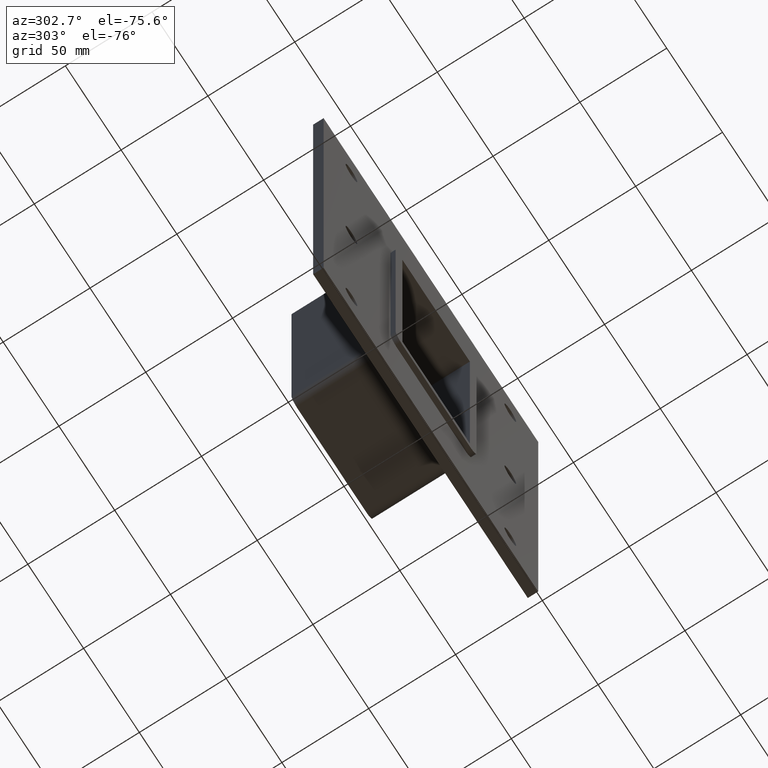
[diagram: clean part render]
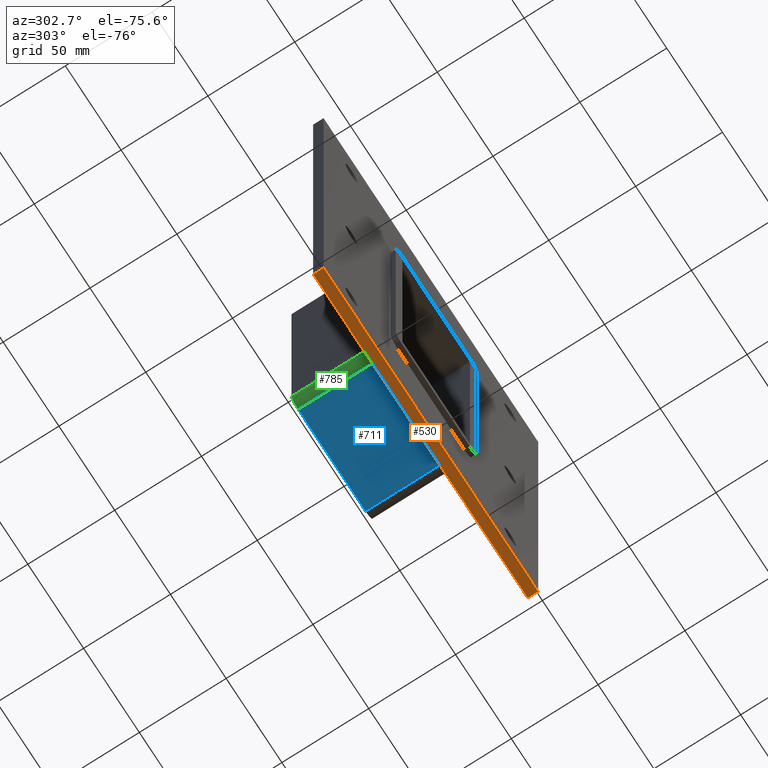
[diagram: same view with three faces highlighted in distinct colors, each labeled with its STEP entity id]
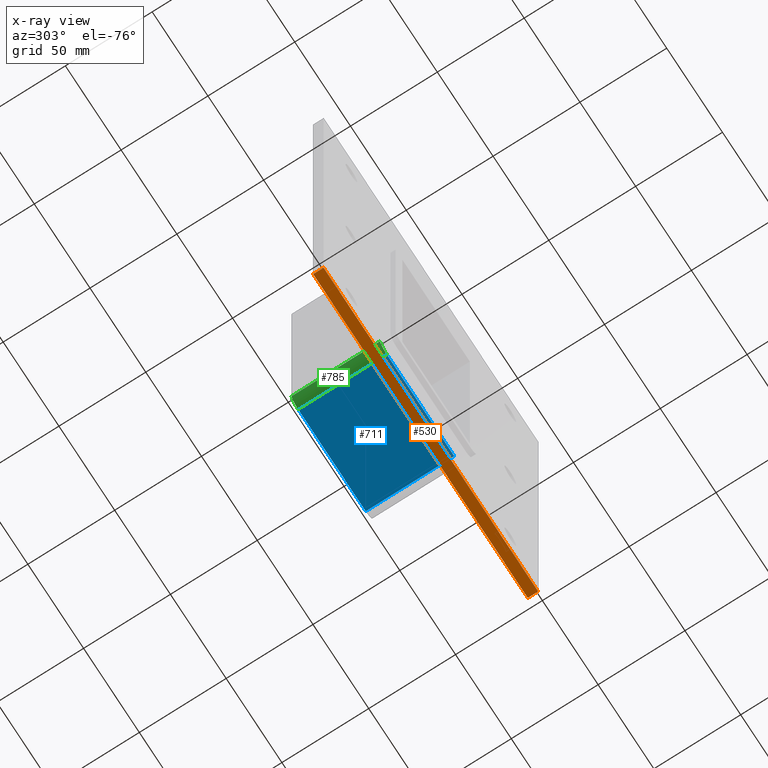
[diagram: x-ray of the same camera — body ghosted, the three highlighted faces saturated]
A machine part, auxiliary view with three faces highlighted in distinct colors.
The next image is the same camera in x-ray (body ghosted, the three faces saturated) — at least one of them is partly hidden behind the body in this view.
Their STEP definitions:

[orange] entity #530 — the highlighted planar face has unit normal (0, 0, -1).
#251=CARTESIAN_POINT('',(96.25,6.000000000000001,-145.74999999999997));
#252=VERTEX_POINT('',#251);
#259=CARTESIAN_POINT('',(-96.25,6.000000000000001,-145.74999999999997));
#260=VERTEX_POINT('',#259);
#261=CARTESIAN_POINT('',(96.249999999999986,6.000000000000001,-145.74999999999997));
#262=DIRECTION('',(-1.0,0.0,0.0));
#263=VECTOR('',#262,192.5);
#264=LINE('',#261,#263);
#265=EDGE_CURVE('',#252,#260,#264,.T.);
#379=CARTESIAN_POINT('',(-96.25,0.0,-145.74999999999997));
#380=VERTEX_POINT('',#379);
#387=CARTESIAN_POINT('',(96.249999999999986,0.0,-145.74999999999997));
#388=VERTEX_POINT('',#387);
#389=CARTESIAN_POINT('',(96.249999999999986,0.0,-145.74999999999997));
#390=DIRECTION('',(-1.0,0.0,0.0));
#391=VECTOR('',#390,192.5);
#392=LINE('',#389,#391);
#393=EDGE_CURVE('',#388,#380,#392,.T.);
#505=CARTESIAN_POINT('',(-96.25,0.0,-145.74999999999997));
#506=DIRECTION('',(0.0,1.0,0.0));
#507=VECTOR('',#506,6.000000000000001);
#508=LINE('',#505,#507);
#509=EDGE_CURVE('',#380,#260,#508,.T.);
#514=CARTESIAN_POINT('',(96.249999999999986,0.0,-145.74999999999997));
#515=DIRECTION('',(0.0,0.0,-1.0));
#516=DIRECTION('',(-1.0,0.0,0.0));
#517=AXIS2_PLACEMENT_3D('',#514,#515,#516);
#518=PLANE('',#517);
#519=ORIENTED_EDGE('',*,*,#393,.T.);
#520=ORIENTED_EDGE('',*,*,#509,.T.);
#521=ORIENTED_EDGE('',*,*,#265,.F.);
#522=CARTESIAN_POINT('',(96.249999999999986,0.0,-145.74999999999997));
#523=DIRECTION('',(0.0,1.0,0.0));
#524=VECTOR('',#523,6.000000000000001);
#525=LINE('',#522,#524);
#526=EDGE_CURVE('',#388,#252,#525,.T.);
#527=ORIENTED_EDGE('',*,*,#526,.F.);
#528=EDGE_LOOP('',(#519,#520,#521,#527));
#529=FACE_OUTER_BOUND('',#528,.T.);
#530=ADVANCED_FACE('',(#529),#518,.T.);

[blue] entity #711 — the highlighted planar face has unit normal (0, 0, -1).
#312=CARTESIAN_POINT('',(-30.250000000000004,6.000000000000001,-85.750000000000028));
#313=VERTEX_POINT('',#312);
#321=CARTESIAN_POINT('',(30.250000000000004,6.000000000000001,-85.750000000000028));
#322=VERTEX_POINT('',#321);
#323=CARTESIAN_POINT('',(30.250000000000004,6.000000000000001,-85.750000000000028));
#324=DIRECTION('',(-1.0,0.0,0.0));
#325=VECTOR('',#324,60.5);
#326=LINE('',#323,#325);
#327=EDGE_CURVE('',#322,#313,#326,.T.);
#638=CARTESIAN_POINT('',(30.250000000000004,57.0,-85.750000000000028));
#639=VERTEX_POINT('',#638);
#640=CARTESIAN_POINT('',(30.250000000000004,6.000000000000001,-85.750000000000028));
#641=DIRECTION('',(0.0,1.0,0.0));
#642=VECTOR('',#641,51.0);
#643=LINE('',#640,#642);
#644=EDGE_CURVE('',#322,#639,#643,.T.);
#688=CARTESIAN_POINT('',(36.25,0.0,-85.750000000000028));
#689=DIRECTION('',(0.0,0.0,-1.0));
#690=DIRECTION('',(-1.0,0.0,0.0));
#691=AXIS2_PLACEMENT_3D('',#688,#689,#690);
#692=PLANE('',#691);
#693=ORIENTED_EDGE('',*,*,#327,.T.);
#694=CARTESIAN_POINT('',(-30.250000000000004,57.0,-85.750000000000028));
#695=VERTEX_POINT('',#694);
#696=CARTESIAN_POINT('',(-30.250000000000004,57.0,-85.750000000000028));
#697=DIRECTION('',(0.0,-1.0,0.0));
#698=VECTOR('',#697,51.0);
#699=LINE('',#696,#698);
#700=EDGE_CURVE('',#695,#313,#699,.T.);
#701=ORIENTED_EDGE('',*,*,#700,.F.);
#702=CARTESIAN_POINT('',(30.250000000000004,57.0,-85.750000000000028));
#703=DIRECTION('',(-1.0,0.0,0.0));
#704=VECTOR('',#703,60.5);
#705=LINE('',#702,#704);
#706=EDGE_CURVE('',#639,#695,#705,.T.);
#707=ORIENTED_EDGE('',*,*,#706,.F.);
#708=ORIENTED_EDGE('',*,*,#644,.F.);
#709=EDGE_LOOP('',(#693,#701,#707,#708));
#710=FACE_OUTER_BOUND('',#709,.T.);
#711=ADVANCED_FACE('',(#710),#692,.T.);

[green] entity #785 — the highlighted cylindrical surface (edge-blend (fillet) strip) has radius 6 mm, axis along (0, 1, 0).
#304=CARTESIAN_POINT('',(-36.25,6.000000000000001,-79.750000000000043));
#305=VERTEX_POINT('',#304);
#312=CARTESIAN_POINT('',(-30.250000000000004,6.000000000000001,-85.750000000000028));
#313=VERTEX_POINT('',#312);
#314=CARTESIAN_POINT('',(-30.250000000000004,6.000000000000001,-79.750000000000043));
#315=DIRECTION('',(0.0,1.0,0.0));
#316=DIRECTION('',(-0.707106781186547,0.0,-0.707106781186547));
#317=AXIS2_PLACEMENT_3D('',#314,#315,#316);
#318=CIRCLE('',#317,6.0);
#319=EDGE_CURVE('',#313,#305,#318,.T.);
#694=CARTESIAN_POINT('',(-30.250000000000004,57.0,-85.750000000000028));
#695=VERTEX_POINT('',#694);
#696=CARTESIAN_POINT('',(-30.250000000000004,57.0,-85.750000000000028));
#697=DIRECTION('',(0.0,-1.0,0.0));
#698=VECTOR('',#697,51.0);
#699=LINE('',#696,#698);
#700=EDGE_CURVE('',#695,#313,#699,.T.);
#761=CARTESIAN_POINT('',(-30.250000000000004,0.0,-79.750000000000043));
#762=DIRECTION('',(0.0,1.0,0.0));
#763=DIRECTION('',(-0.707106781186547,0.0,-0.707106781186547));
#764=AXIS2_PLACEMENT_3D('',#761,#762,#763);
#765=CYLINDRICAL_SURFACE('',#764,6.000000000000001);
#766=ORIENTED_EDGE('',*,*,#319,.T.);
#767=CARTESIAN_POINT('',(-36.25,57.0,-79.750000000000043));
#768=VERTEX_POINT('',#767);
#769=CARTESIAN_POINT('',(-36.25,6.000000000000001,-79.750000000000043));
#770=DIRECTION('',(0.0,1.0,0.0));
#771=VECTOR('',#770,51.0);
#772=LINE('',#769,#771);
#773=EDGE_CURVE('',#305,#768,#772,.T.);
#774=ORIENTED_EDGE('',*,*,#773,.T.);
#775=CARTESIAN_POINT('',(-30.250000000000004,57.0,-79.750000000000043));
#776=DIRECTION('',(0.0,-1.0,0.0));
#777=DIRECTION('',(-0.707106781186547,0.0,-0.707106781186547));
#778=AXIS2_PLACEMENT_3D('',#775,#776,#777);
#779=CIRCLE('',#778,6.0);
#780=EDGE_CURVE('',#768,#695,#779,.T.);
#781=ORIENTED_EDGE('',*,*,#780,.T.);
#782=ORIENTED_EDGE('',*,*,#700,.T.);
#783=EDGE_LOOP('',(#766,#774,#781,#782));
#784=FACE_OUTER_BOUND('',#783,.T.);
#785=ADVANCED_FACE('',(#784),#765,.T.);